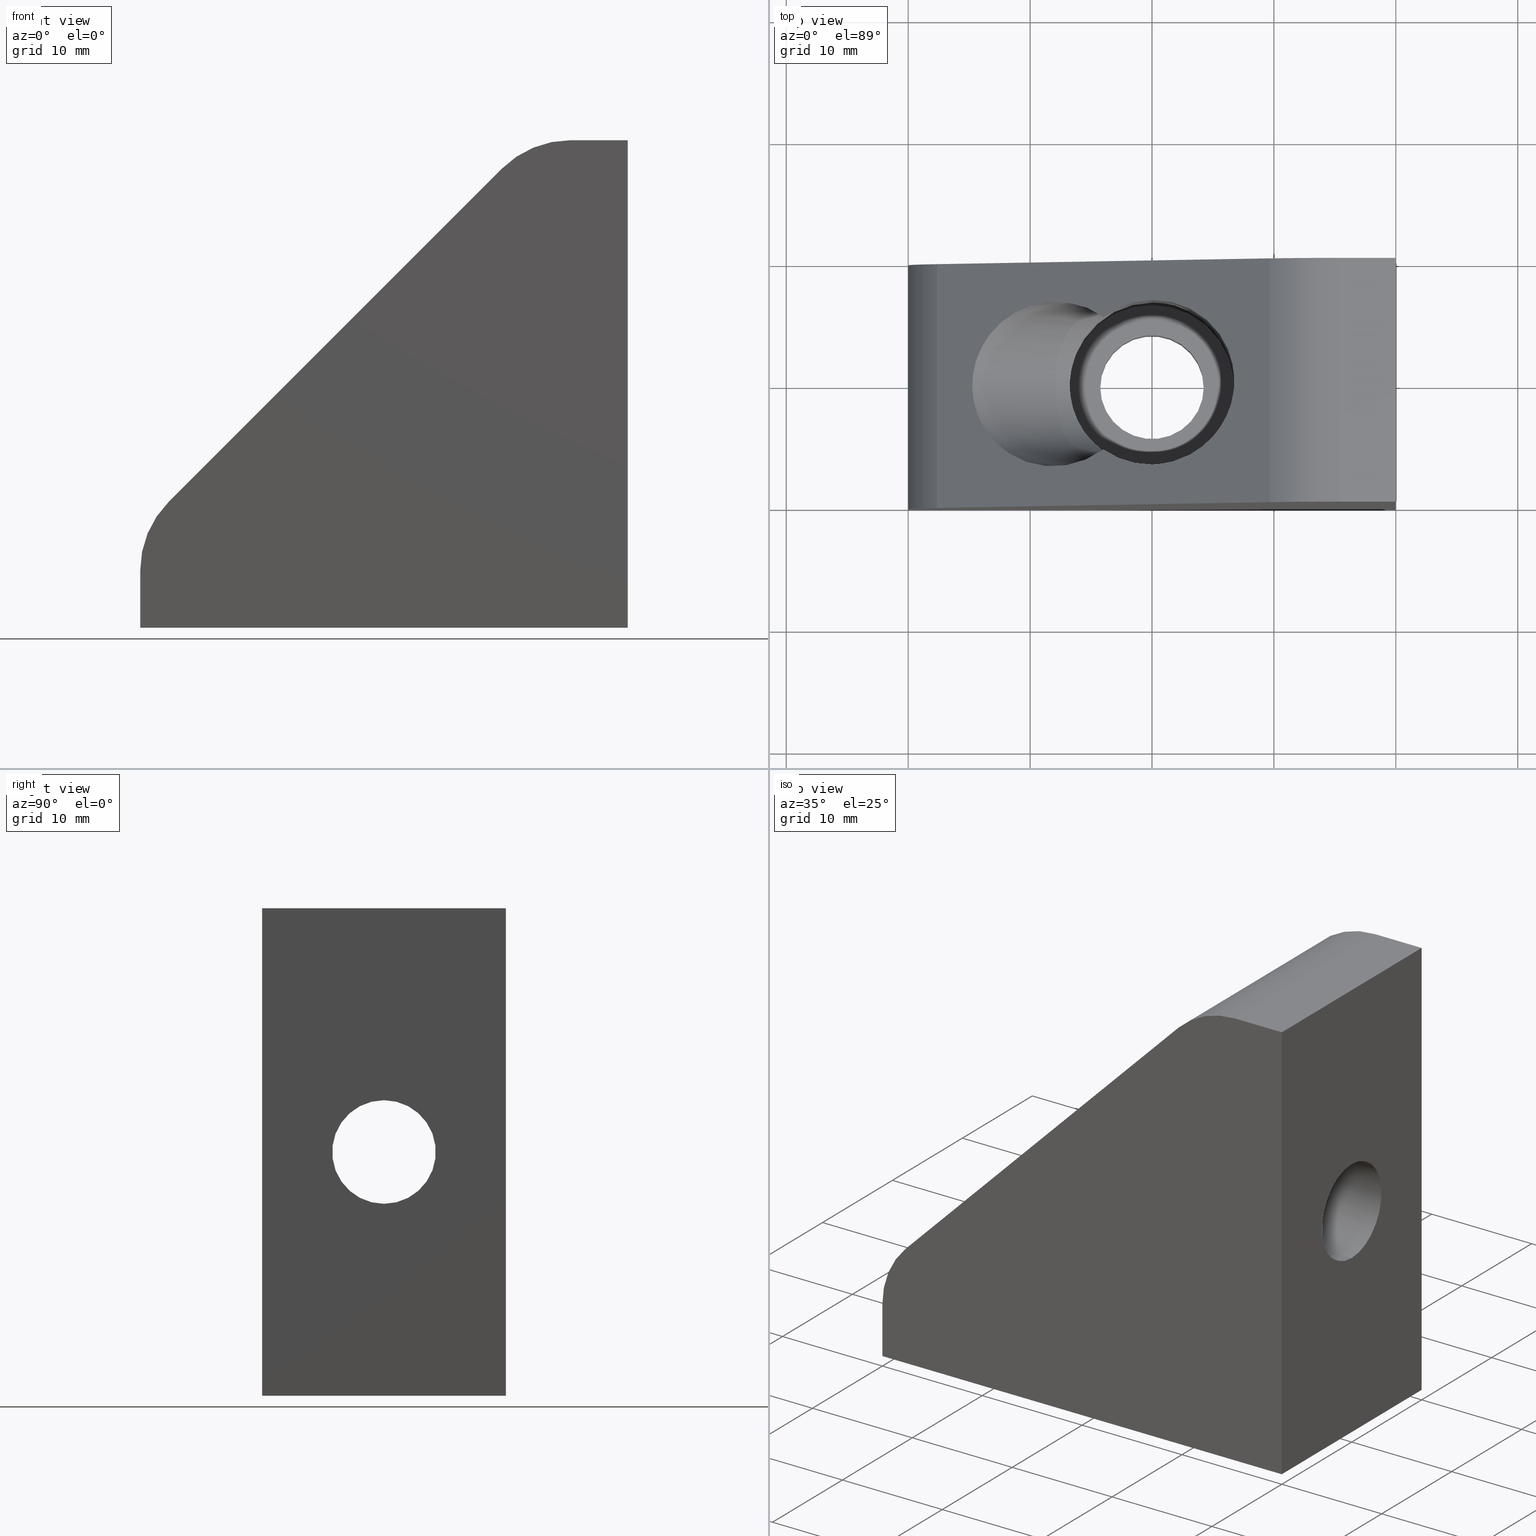
[diagram: canonical four-view strip — front | top / right | iso, engineering-drawing reading convention]
A machine part, canonical four-view strip (front | top / right | iso — engineering-drawing reading convention). The complete STEP part file that produces these views, byte-faithful:
ISO-10303-21;
HEADER;
/****************************************************************
 * Generated by software with PDE/Lib inside                    *
 * PDElib Version v4.4, created Mon 02/23/2004                  *
 * International Technegroup Inc. (www.iti-oh.com)              *
 ****************************************************************/
FILE_DESCRIPTION(('STEP AP203'),'2;1');
FILE_NAME('30.002.00.stp','2011-02-14T10:53:44',(''),(''),'2009.3.110','THINKDESIGN','');
FILE_SCHEMA(('CONFIG_CONTROL_DESIGN'));
ENDSEC;
DATA;
#2=CARTESIAN_POINT('',(-20.000000009999994,-1.065814E-014,20.0));
#3=DIRECTION('',(1.0,0.0,0.0));
#4=DIRECTION('',(0.0,-1.0,0.0));
#5=AXIS2_PLACEMENT_3D('',#2,#3,#4);
#6=CYLINDRICAL_SURFACE('',#5,6.749999999999997);
#7=CARTESIAN_POINT('',(-13.250000000000004,-1.065814E-014,13.250000000000005));
#8=VERTEX_POINT('',#7);
#9=CARTESIAN_POINT('',(-19.999999999999996,6.749999999999993,20.0));
#10=VERTEX_POINT('',#9);
#11=CARTESIAN_POINT('',(-13.250000000000004,-1.065814E-014,13.250000000000005));
#12=CARTESIAN_POINT('',(-13.250000000000004,3.954058453981602,13.250000000000000));
#13=CARTESIAN_POINT('',(-16.045941546018373,6.749999999999989,16.045941546018394));
#14=CARTESIAN_POINT('',(-19.999999999999996,6.749999999999993,20.0));
#22=(BOUNDED_CURVE()B_SPLINE_CURVE(3,(#11,#12,#13,#14),.UNSPECIFIED.,.F.,.U.)B_SPLINE_CURVE_WITH_KNOTS((4,4),(0.0,1.570796326794897),.UNSPECIFIED.)CURVE()GEOMETRIC_REPRESENTATION_ITEM()RATIONAL_B_SPLINE_CURVE((1.0,0.804737854124365,0.804737854124365,1.0))REPRESENTATION_ITEM(''));
#23=EDGE_CURVE('',#8,#10,#22,.T.);
#24=ORIENTED_EDGE('',*,*,#23,.F.);
#25=CARTESIAN_POINT('',(-5.0,-1.065814E-014,13.250000000000000));
#26=VERTEX_POINT('',#25);
#27=CARTESIAN_POINT('',(-13.250000000000004,-1.065814E-014,13.250000000000005));
#28=DIRECTION('',(1.0,0.0,0.0));
#29=VECTOR('',#28,8.250000000000004);
#30=LINE('',#27,#29);
#31=EDGE_CURVE('',#8,#26,#30,.T.);
#32=ORIENTED_EDGE('',*,*,#31,.T.);
#33=CARTESIAN_POINT('',(-5.0,-1.065814E-014,26.750000000000000));
#34=VERTEX_POINT('',#33);
#35=CARTESIAN_POINT('',(-5.0,-1.065814E-014,20.0));
#36=DIRECTION('',(-1.0,0.0,0.0));
#37=DIRECTION('',(0.0,0.0,1.0));
#38=AXIS2_PLACEMENT_3D('',#35,#36,#37);
#39=CIRCLE('',#38,6.749999999999997);
#40=EDGE_CURVE('',#34,#26,#39,.T.);
#41=ORIENTED_EDGE('',*,*,#40,.F.);
#42=CARTESIAN_POINT('',(-13.250000000000004,-1.065814E-014,26.750000000000000));
#43=VERTEX_POINT('',#42);
#44=CARTESIAN_POINT('',(-13.250000000000004,-1.065814E-014,26.750000000000000));
#45=DIRECTION('',(1.0,0.0,0.0));
#46=VECTOR('',#45,8.250000000000004);
#47=LINE('',#44,#46);
#48=EDGE_CURVE('',#43,#34,#47,.T.);
#49=ORIENTED_EDGE('',*,*,#48,.F.);
#50=CARTESIAN_POINT('',(-19.999999999999996,6.749999999999993,20.0));
#51=CARTESIAN_POINT('',(-16.045941546018373,6.749999999999989,23.954058453981599));
#52=CARTESIAN_POINT('',(-13.250000000000004,3.954058453981602,26.750000000000000));
#53=CARTESIAN_POINT('',(-13.250000000000004,-1.065814E-014,26.750000000000000));
#61=(BOUNDED_CURVE()B_SPLINE_CURVE(3,(#50,#51,#52,#53),.UNSPECIFIED.,.F.,.U.)B_SPLINE_CURVE_WITH_KNOTS((4,4),(1.570796326794897,3.141592653589793),.UNSPECIFIED.)CURVE()GEOMETRIC_REPRESENTATION_ITEM()RATIONAL_B_SPLINE_CURVE((1.0,0.804737854124365,0.804737854124365,1.0))REPRESENTATION_ITEM(''));
#62=EDGE_CURVE('',#10,#43,#61,.T.);
#63=ORIENTED_EDGE('',*,*,#62,.F.);
#64=EDGE_LOOP('',(#24,#32,#41,#49,#63));
#65=FACE_OUTER_BOUND('',#64,.T.);
#66=ADVANCED_FACE('',(#65),#6,.F.);
#67=CARTESIAN_POINT('',(0.000000010000001,-1.065814E-014,20.0));
#68=DIRECTION('',(-1.0,0.0,0.0));
#69=DIRECTION('',(0.0,1.0,0.0));
#70=AXIS2_PLACEMENT_3D('',#67,#68,#69);
#71=CYLINDRICAL_SURFACE('',#70,4.250000000000000);
#72=CARTESIAN_POINT('',(0.0,-1.065814E-014,15.749999999999995));
#73=VERTEX_POINT('',#72);
#74=CARTESIAN_POINT('',(0.0,-1.065814E-014,24.250000000000000));
#75=VERTEX_POINT('',#74);
#76=CARTESIAN_POINT('',(0.0,-1.065814E-014,20.0));
#77=DIRECTION('',(-1.0,0.0,0.0));
#78=DIRECTION('',(0.0,0.0,1.0));
#79=AXIS2_PLACEMENT_3D('',#76,#77,#78);
#80=CIRCLE('',#79,4.250000000000000);
#81=EDGE_CURVE('',#73,#75,#80,.T.);
#82=ORIENTED_EDGE('',*,*,#81,.F.);
#83=CARTESIAN_POINT('',(-5.0,-1.065814E-014,15.749999999999995));
#84=VERTEX_POINT('',#83);
#85=CARTESIAN_POINT('',(0.0,-1.065814E-014,15.749999999999995));
#86=DIRECTION('',(-1.0,0.0,0.0));
#87=VECTOR('',#86,5.0);
#88=LINE('',#85,#87);
#89=EDGE_CURVE('',#73,#84,#88,.T.);
#90=ORIENTED_EDGE('',*,*,#89,.T.);
#91=CARTESIAN_POINT('',(-5.0,-1.065814E-014,24.250000000000000));
#92=VERTEX_POINT('',#91);
#93=CARTESIAN_POINT('',(-5.0,-1.065814E-014,20.0));
#94=DIRECTION('',(-1.0,0.0,0.0));
#95=DIRECTION('',(0.0,0.0,-1.0));
#96=AXIS2_PLACEMENT_3D('',#93,#94,#95);
#97=CIRCLE('',#96,4.250000000000000);
#98=EDGE_CURVE('',#84,#92,#97,.T.);
#99=ORIENTED_EDGE('',*,*,#98,.T.);
#100=CARTESIAN_POINT('',(0.0,-1.065814E-014,24.250000000000000));
#101=DIRECTION('',(-1.0,0.0,0.0));
#102=VECTOR('',#101,5.0);
#103=LINE('',#100,#102);
#104=EDGE_CURVE('',#75,#92,#103,.T.);
#105=ORIENTED_EDGE('',*,*,#104,.F.);
#106=EDGE_LOOP('',(#82,#90,#99,#105));
#107=FACE_OUTER_BOUND('',#106,.T.);
#108=ADVANCED_FACE('',(#107),#71,.F.);
#109=CARTESIAN_POINT('',(-20.000000000000004,0.0,-0.000000010000001));
#110=DIRECTION('',(0.0,0.0,1.0));
#111=DIRECTION('',(0.0,1.0,0.0));
#112=AXIS2_PLACEMENT_3D('',#109,#110,#111);
#113=CYLINDRICAL_SURFACE('',#112,4.250000000000004);
#114=CARTESIAN_POINT('',(-24.249999999999996,0.0,0.0));
#115=VERTEX_POINT('',#114);
#116=CARTESIAN_POINT('',(-15.749999999999996,0.0,0.0));
#117=VERTEX_POINT('',#116);
#118=CARTESIAN_POINT('',(-19.999999999999996,0.0,0.0));
#119=DIRECTION('',(0.0,0.0,1.0));
#120=DIRECTION('',(1.0,0.0,0.0));
#121=AXIS2_PLACEMENT_3D('',#118,#119,#120);
#122=CIRCLE('',#121,4.250000000000004);
#123=EDGE_CURVE('',#115,#117,#122,.T.);
#124=ORIENTED_EDGE('',*,*,#123,.F.);
#125=CARTESIAN_POINT('',(-24.249999999999996,0.0,4.999999999999997));
#126=VERTEX_POINT('',#125);
#127=CARTESIAN_POINT('',(-24.249999999999996,0.0,0.0));
#128=DIRECTION('',(0.0,0.0,1.0));
#129=VECTOR('',#128,4.999999999999997);
#130=LINE('',#127,#129);
#131=EDGE_CURVE('',#115,#126,#130,.T.);
#132=ORIENTED_EDGE('',*,*,#131,.T.);
#133=CARTESIAN_POINT('',(-15.749999999999996,0.0,4.999999999999997));
#134=VERTEX_POINT('',#133);
#135=CARTESIAN_POINT('',(-19.999999999999996,0.0,4.999999999999997));
#136=DIRECTION('',(0.0,0.0,1.0));
#137=DIRECTION('',(-1.0,0.0,0.0));
#138=AXIS2_PLACEMENT_3D('',#135,#136,#137);
#139=CIRCLE('',#138,4.250000000000004);
#140=EDGE_CURVE('',#126,#134,#139,.T.);
#141=ORIENTED_EDGE('',*,*,#140,.T.);
#142=CARTESIAN_POINT('',(-15.749999999999996,0.0,0.0));
#143=DIRECTION('',(0.0,0.0,1.0));
#144=VECTOR('',#143,4.999999999999997);
#145=LINE('',#142,#144);
#146=EDGE_CURVE('',#117,#134,#145,.T.);
#147=ORIENTED_EDGE('',*,*,#146,.F.);
#148=EDGE_LOOP('',(#124,#132,#141,#147));
#149=FACE_OUTER_BOUND('',#148,.T.);
#150=ADVANCED_FACE('',(#149),#113,.F.);
#151=CARTESIAN_POINT('',(-19.999999999999996,-3.552714E-015,20.000000010000001));
#152=DIRECTION('',(0.0,0.0,-1.0));
#153=DIRECTION('',(-1.0,0.0,0.0));
#154=AXIS2_PLACEMENT_3D('',#151,#152,#153);
#155=CYLINDRICAL_SURFACE('',#154,6.749999999999997);
#156=CARTESIAN_POINT('',(-19.999999999999996,-6.750000000000014,20.0));
#157=VERTEX_POINT('',#156);
#158=CARTESIAN_POINT('',(-19.999999999999996,-6.750000000000014,20.0));
#159=CARTESIAN_POINT('',(-16.045941546018373,-6.750000000000014,16.045941546018394));
#160=CARTESIAN_POINT('',(-13.250000000000004,-3.954058453981610,13.250000000000000));
#161=CARTESIAN_POINT('',(-13.250000000000004,-1.065814E-014,13.250000000000005));
#169=(BOUNDED_CURVE()B_SPLINE_CURVE(3,(#158,#159,#160,#161),.UNSPECIFIED.,.F.,.U.)B_SPLINE_CURVE_WITH_KNOTS((4,4),(4.712388980384691,6.283185307179585),.UNSPECIFIED.)CURVE()GEOMETRIC_REPRESENTATION_ITEM()RATIONAL_B_SPLINE_CURVE((1.0,0.804737854124365,0.804737854124365,1.0))REPRESENTATION_ITEM(''));
#170=EDGE_CURVE('',#157,#8,#169,.T.);
#171=ORIENTED_EDGE('',*,*,#170,.T.);
#172=ORIENTED_EDGE('',*,*,#23,.T.);
#173=CARTESIAN_POINT('',(-19.999999999999996,6.750000000000000,4.999999999999997));
#174=VERTEX_POINT('',#173);
#175=CARTESIAN_POINT('',(-19.999999999999996,6.749999999999998,20.0));
#176=DIRECTION('',(0.0,0.0,-1.0));
#177=VECTOR('',#176,15.000000000000004);
#178=LINE('',#175,#177);
#179=EDGE_CURVE('',#10,#174,#178,.T.);
#180=ORIENTED_EDGE('',*,*,#179,.T.);
#181=CARTESIAN_POINT('',(-19.999999999999996,-6.750000000000000,4.999999999999997));
#182=VERTEX_POINT('',#181);
#183=CARTESIAN_POINT('',(-19.999999999999996,0.0,4.999999999999997));
#184=DIRECTION('',(0.0,0.0,1.0));
#185=DIRECTION('',(0.0,-1.0,0.0));
#186=AXIS2_PLACEMENT_3D('',#183,#184,#185);
#187=CIRCLE('',#186,6.749999999999997);
#188=EDGE_CURVE('',#182,#174,#187,.T.);
#189=ORIENTED_EDGE('',*,*,#188,.F.);
#190=CARTESIAN_POINT('',(-19.999999999999996,-6.750000000000000,20.0));
#191=DIRECTION('',(0.0,0.0,-1.0));
#192=VECTOR('',#191,15.000000000000004);
#193=LINE('',#190,#192);
#194=EDGE_CURVE('',#157,#182,#193,.T.);
#195=ORIENTED_EDGE('',*,*,#194,.F.);
#196=EDGE_LOOP('',(#171,#172,#180,#189,#195));
#197=FACE_OUTER_BOUND('',#196,.T.);
#198=ADVANCED_FACE('',(#197),#155,.F.);
#199=CARTESIAN_POINT('',(-19.999999999999996,-3.552714E-015,34.750008955876332));
#200=DIRECTION('',(0.0,0.0,-1.0));
#201=DIRECTION('',(-1.0,0.0,0.0));
#202=AXIS2_PLACEMENT_3D('',#199,#200,#201);
#203=CYLINDRICAL_SURFACE('',#202,6.749999999999997);
#204=CARTESIAN_POINT('',(-19.999999999999996,6.749999999999998,28.0));
#205=VERTEX_POINT('',#204);
#206=CARTESIAN_POINT('',(-19.999999999999996,-6.750000000000000,28.0));
#207=VERTEX_POINT('',#206);
#208=CARTESIAN_POINT('',(-19.999999999999996,6.749999999999998,28.0));
#209=CARTESIAN_POINT('',(-6.500000000000004,6.749999999999996,41.499999999999986));
#210=CARTESIAN_POINT('',(-6.500000000000004,-6.749999999999996,41.499999999999986));
#211=CARTESIAN_POINT('',(-19.999999999999996,-6.750000000000000,28.0));
#219=(BOUNDED_CURVE()B_SPLINE_CURVE(3,(#208,#209,#210,#211),.UNSPECIFIED.,.F.,.U.)B_SPLINE_CURVE_WITH_KNOTS((4,4),(1.570796326794897,4.712388980384691),.UNSPECIFIED.)CURVE()GEOMETRIC_REPRESENTATION_ITEM()RATIONAL_B_SPLINE_CURVE((1.0,0.333333333333333,0.333333333333333,1.0))REPRESENTATION_ITEM(''));
#220=EDGE_CURVE('',#205,#207,#219,.T.);
#221=ORIENTED_EDGE('',*,*,#220,.F.);
#222=CARTESIAN_POINT('',(-19.999999999999996,6.749999999999998,28.0));
#223=DIRECTION('',(0.0,0.0,-1.0));
#224=VECTOR('',#223,8.0);
#225=LINE('',#222,#224);
#226=EDGE_CURVE('',#205,#10,#225,.T.);
#227=ORIENTED_EDGE('',*,*,#226,.T.);
#228=ORIENTED_EDGE('',*,*,#62,.T.);
#229=CARTESIAN_POINT('',(-13.250000000000004,-1.065814E-014,26.750000000000000));
#230=CARTESIAN_POINT('',(-13.250000000000004,-3.954058453981610,26.750000000000000));
#231=CARTESIAN_POINT('',(-16.045941546018373,-6.750000000000014,23.954058453981599));
#232=CARTESIAN_POINT('',(-19.999999999999996,-6.750000000000014,20.0));
#240=(BOUNDED_CURVE()B_SPLINE_CURVE(3,(#229,#230,#231,#232),.UNSPECIFIED.,.F.,.U.)B_SPLINE_CURVE_WITH_KNOTS((4,4),(3.141592653589793,4.712388980384691),.UNSPECIFIED.)CURVE()GEOMETRIC_REPRESENTATION_ITEM()RATIONAL_B_SPLINE_CURVE((1.0,0.804737854124365,0.804737854124365,1.0))REPRESENTATION_ITEM(''));
#241=EDGE_CURVE('',#43,#157,#240,.T.);
#242=ORIENTED_EDGE('',*,*,#241,.T.);
#243=CARTESIAN_POINT('',(-19.999999999999996,-6.750000000000000,28.0));
#244=DIRECTION('',(0.0,0.0,-1.0));
#245=VECTOR('',#244,8.0);
#246=LINE('',#243,#245);
#247=EDGE_CURVE('',#207,#157,#246,.T.);
#248=ORIENTED_EDGE('',*,*,#247,.F.);
#249=EDGE_LOOP('',(#221,#227,#228,#242,#248));
#250=FACE_OUTER_BOUND('',#249,.T.);
#251=ADVANCED_FACE('',(#250),#203,.F.);
#252=CARTESIAN_POINT('',(-19.999999999999996,0.0,28.000000010000001));
#253=DIRECTION('',(0.0,0.0,-1.0));
#254=DIRECTION('',(0.311847446947918,0.950132185452143,0.0));
#255=AXIS2_PLACEMENT_3D('',#252,#253,#254);
#256=CYLINDRICAL_SURFACE('',#255,6.749999999999997);
#257=CARTESIAN_POINT('',(-23.999999999999996,-5.437140792732894,24.0));
#258=VERTEX_POINT('',#257);
#259=CARTESIAN_POINT('',(-19.999999999999996,-6.750000000000000,28.0));
#260=CARTESIAN_POINT('',(-21.451571303647828,-6.749999999999994,26.548428696352165));
#261=CARTESIAN_POINT('',(-22.830755918722353,-6.297331194894571,25.169244081277640));
#262=CARTESIAN_POINT('',(-23.999999999999996,-5.437140792732894,24.0));
#270=(BOUNDED_CURVE()B_SPLINE_CURVE(3,(#259,#260,#261,#262),.UNSPECIFIED.,.F.,.U.)B_SPLINE_CURVE_WITH_KNOTS((4,4),(4.712388980384691,5.346662628507185),.UNSPECIFIED.)CURVE()GEOMETRIC_REPRESENTATION_ITEM()RATIONAL_B_SPLINE_CURVE((1.0,0.966754790301429,0.966754790301429,1.0))REPRESENTATION_ITEM(''));
#271=EDGE_CURVE('',#207,#258,#270,.T.);
#272=ORIENTED_EDGE('',*,*,#271,.F.);
#273=ORIENTED_EDGE('',*,*,#247,.T.);
#274=CARTESIAN_POINT('',(-19.999999999999996,-6.750000000000014,20.0));
#275=CARTESIAN_POINT('',(-21.451571303647828,-6.750000000000014,21.451571303647832));
#276=CARTESIAN_POINT('',(-22.830755918722364,-6.297331194894571,22.830755918722360));
#277=CARTESIAN_POINT('',(-23.999999999999996,-5.437140792732894,24.0));
#285=(BOUNDED_CURVE()B_SPLINE_CURVE(3,(#274,#275,#276,#277),.UNSPECIFIED.,.F.,.U.)B_SPLINE_CURVE_WITH_KNOTS((4,4),(1.570796326794897,2.205069974917393),.UNSPECIFIED.)CURVE()GEOMETRIC_REPRESENTATION_ITEM()RATIONAL_B_SPLINE_CURVE((1.0,0.966754790301428,0.966754790301428,1.0))REPRESENTATION_ITEM(''));
#286=EDGE_CURVE('',#157,#258,#285,.T.);
#287=ORIENTED_EDGE('',*,*,#286,.T.);
#288=EDGE_LOOP('',(#272,#273,#287));
#289=FACE_OUTER_BOUND('',#288,.T.);
#290=ADVANCED_FACE('',(#289),#256,.F.);
#291=CARTESIAN_POINT('',(-40.000000000000014,-10.999999999999996,4.920606076066001));
#292=DIRECTION('',(1.0,0.0,0.0));
#293=DIRECTION('',(0.0,0.0,-1.0));
#294=AXIS2_PLACEMENT_3D('',#291,#292,#293);
#295=PLANE('',#294);
#296=CARTESIAN_POINT('',(-40.000000000000014,-10.0,4.686291501015233));
#297=VERTEX_POINT('',#296);
#298=CARTESIAN_POINT('',(-40.000000000000014,-10.0,0.0));
#299=VERTEX_POINT('',#298);
#300=CARTESIAN_POINT('',(-40.000000000000014,-10.0,4.686291501015241));
#301=DIRECTION('',(0.0,0.0,-1.0));
#302=VECTOR('',#301,4.686291501015241);
#303=LINE('',#300,#302);
#304=EDGE_CURVE('',#297,#299,#303,.T.);
#305=ORIENTED_EDGE('',*,*,#304,.F.);
#306=CARTESIAN_POINT('',(-40.000000000000014,10.000000000000002,4.686291501015233));
#307=VERTEX_POINT('',#306);
#308=CARTESIAN_POINT('',(-40.000000000000014,-9.999999999999996,4.686291501015233));
#309=DIRECTION('',(0.0,1.0,0.0));
#310=VECTOR('',#309,20.0);
#311=LINE('',#308,#310);
#312=EDGE_CURVE('',#297,#307,#311,.T.);
#313=ORIENTED_EDGE('',*,*,#312,.T.);
#314=CARTESIAN_POINT('',(-40.000000000000014,10.000000000000002,0.0));
#315=VERTEX_POINT('',#314);
#316=CARTESIAN_POINT('',(-40.000000000000014,10.000000000000002,4.686291501015241));
#317=DIRECTION('',(0.0,0.0,-1.0));
#318=VECTOR('',#317,4.686291501015241);
#319=LINE('',#316,#318);
#320=EDGE_CURVE('',#307,#315,#319,.T.);
#321=ORIENTED_EDGE('',*,*,#320,.T.);
#322=CARTESIAN_POINT('',(-40.000000000000014,10.000000000000002,0.0));
#323=DIRECTION('',(0.0,-1.0,0.0));
#324=VECTOR('',#323,20.0);
#325=LINE('',#322,#324);
#326=EDGE_CURVE('',#315,#299,#325,.T.);
#327=ORIENTED_EDGE('',*,*,#326,.T.);
#328=EDGE_LOOP('',(#305,#313,#321,#327));
#329=FACE_OUTER_BOUND('',#328,.T.);
#330=ADVANCED_FACE('',(#329),#295,.F.);
#331=CARTESIAN_POINT('',(-42.000000000000014,-10.0,-2.0));
#332=DIRECTION('',(0.0,1.0,0.0));
#333=DIRECTION('',(0.0,0.0,1.0));
#334=AXIS2_PLACEMENT_3D('',#331,#332,#333);
#335=PLANE('',#334);
#336=CARTESIAN_POINT('',(-4.686291501015241,-10.0,40.0));
#337=VERTEX_POINT('',#336);
#338=CARTESIAN_POINT('',(0.0,-10.0,40.0));
#339=VERTEX_POINT('',#338);
#340=CARTESIAN_POINT('',(-4.686291501015244,-10.0,40.0));
#341=DIRECTION('',(1.0,0.0,0.0));
#342=VECTOR('',#341,4.686291501015244);
#343=LINE('',#340,#342);
#344=EDGE_CURVE('',#337,#339,#343,.T.);
#345=ORIENTED_EDGE('',*,*,#344,.F.);
#346=CARTESIAN_POINT('',(-10.343145750507620,-10.0,37.656854249492390));
#347=VERTEX_POINT('',#346);
#348=CARTESIAN_POINT('',(-4.686291501015241,-10.0,32.0));
#349=DIRECTION('',(0.0,-1.0,0.0));
#350=DIRECTION('',(0.0,0.0,1.0));
#351=AXIS2_PLACEMENT_3D('',#348,#349,#350);
#352=CIRCLE('',#351,8.0);
#353=EDGE_CURVE('',#337,#347,#352,.T.);
#354=ORIENTED_EDGE('',*,*,#353,.T.);
#355=CARTESIAN_POINT('',(-37.656854249492369,-10.0,10.343145750507613));
#356=VERTEX_POINT('',#355);
#357=CARTESIAN_POINT('',(-37.656854249492383,-10.0,10.343145750507619));
#358=DIRECTION('',(0.707106781186547,0.0,0.707106781186548));
#359=VECTOR('',#358,38.627416997969533);
#360=LINE('',#357,#359);
#361=EDGE_CURVE('',#356,#347,#360,.T.);
#362=ORIENTED_EDGE('',*,*,#361,.F.);
#363=CARTESIAN_POINT('',(-32.0,-10.0,4.686291501015233));
#364=DIRECTION('',(0.0,-1.0,0.0));
#365=DIRECTION('',(0.0,0.0,1.0));
#366=AXIS2_PLACEMENT_3D('',#363,#364,#365);
#367=CIRCLE('',#366,8.0);
#368=EDGE_CURVE('',#356,#297,#367,.T.);
#369=ORIENTED_EDGE('',*,*,#368,.T.);
#370=ORIENTED_EDGE('',*,*,#304,.T.);
#371=CARTESIAN_POINT('',(0.0,-10.0,0.0));
#372=VERTEX_POINT('',#371);
#373=CARTESIAN_POINT('',(-40.000000000000014,-10.0,0.0));
#374=DIRECTION('',(1.0,0.0,0.0));
#375=VECTOR('',#374,40.000000000000014);
#376=LINE('',#373,#375);
#377=EDGE_CURVE('',#299,#372,#376,.T.);
#378=ORIENTED_EDGE('',*,*,#377,.T.);
#379=CARTESIAN_POINT('',(0.0,-10.0,40.0));
#380=DIRECTION('',(0.0,0.0,-1.0));
#381=VECTOR('',#380,40.0);
#382=LINE('',#379,#381);
#383=EDGE_CURVE('',#339,#372,#382,.T.);
#384=ORIENTED_EDGE('',*,*,#383,.F.);
#385=EDGE_LOOP('',(#345,#354,#362,#369,#370,#378,#384));
#386=FACE_OUTER_BOUND('',#385,.T.);
#387=ADVANCED_FACE('',(#386),#335,.F.);
#388=CARTESIAN_POINT('',(-42.000000000000014,10.000000000000002,42.0));
#389=DIRECTION('',(0.0,-1.0,0.0));
#390=DIRECTION('',(0.0,0.0,-1.0));
#391=AXIS2_PLACEMENT_3D('',#388,#389,#390);
#392=PLANE('',#391);
#393=CARTESIAN_POINT('',(-37.656854249492369,9.999999999999998,10.343145750507611));
#394=VERTEX_POINT('',#393);
#395=CARTESIAN_POINT('',(-10.343145750507620,9.999999999999998,37.656854249492390));
#396=VERTEX_POINT('',#395);
#397=CARTESIAN_POINT('',(-37.656854249492369,9.999999999999998,10.343145750507617));
#398=DIRECTION('',(0.707106781186548,0.0,0.707106781186548));
#399=VECTOR('',#398,38.627416997969526);
#400=LINE('',#397,#399);
#401=EDGE_CURVE('',#394,#396,#400,.T.);
#402=ORIENTED_EDGE('',*,*,#401,.T.);
#403=CARTESIAN_POINT('',(-4.686291501015241,10.000000000000002,40.0));
#404=VERTEX_POINT('',#403);
#405=CARTESIAN_POINT('',(-4.686291501015241,9.999999999999996,32.0));
#406=DIRECTION('',(0.0,1.0,0.0));
#407=DIRECTION('',(0.0,0.0,-1.0));
#408=AXIS2_PLACEMENT_3D('',#405,#406,#407);
#409=CIRCLE('',#408,8.0);
#410=EDGE_CURVE('',#396,#404,#409,.T.);
#411=ORIENTED_EDGE('',*,*,#410,.T.);
#412=CARTESIAN_POINT('',(0.0,10.000000000000002,40.0));
#413=VERTEX_POINT('',#412);
#414=CARTESIAN_POINT('',(0.0,10.000000000000002,40.0));
#415=DIRECTION('',(-1.0,0.0,0.0));
#416=VECTOR('',#415,4.686291501015241);
#417=LINE('',#414,#416);
#418=EDGE_CURVE('',#413,#404,#417,.T.);
#419=ORIENTED_EDGE('',*,*,#418,.F.);
#420=CARTESIAN_POINT('',(0.0,10.000000000000002,0.0));
#421=VERTEX_POINT('',#420);
#422=CARTESIAN_POINT('',(0.0,10.000000000000002,40.0));
#423=DIRECTION('',(0.0,0.0,-1.0));
#424=VECTOR('',#423,40.0);
#425=LINE('',#422,#424);
#426=EDGE_CURVE('',#413,#421,#425,.T.);
#427=ORIENTED_EDGE('',*,*,#426,.T.);
#428=CARTESIAN_POINT('',(0.0,10.000000000000002,0.0));
#429=DIRECTION('',(-1.0,0.0,0.0));
#430=VECTOR('',#429,40.000000000000014);
#431=LINE('',#428,#430);
#432=EDGE_CURVE('',#421,#315,#431,.T.);
#433=ORIENTED_EDGE('',*,*,#432,.T.);
#434=ORIENTED_EDGE('',*,*,#320,.F.);
#435=CARTESIAN_POINT('',(-32.0,10.000000000000002,4.686291501015233));
#436=DIRECTION('',(0.0,1.0,0.0));
#437=DIRECTION('',(0.0,0.0,-1.0));
#438=AXIS2_PLACEMENT_3D('',#435,#436,#437);
#439=CIRCLE('',#438,8.0);
#440=EDGE_CURVE('',#307,#394,#439,.T.);
#441=ORIENTED_EDGE('',*,*,#440,.T.);
#442=EDGE_LOOP('',(#402,#411,#419,#427,#433,#434,#441));
#443=FACE_OUTER_BOUND('',#442,.T.);
#444=ADVANCED_FACE('',(#443),#392,.F.);
#445=CARTESIAN_POINT('',(-4.920606076066004,-11.000000000000004,40.0));
#446=DIRECTION('',(0.0,0.0,1.0));
#447=DIRECTION('',(1.0,0.0,0.0));
#448=AXIS2_PLACEMENT_3D('',#445,#446,#447);
#449=PLANE('',#448);
#450=ORIENTED_EDGE('',*,*,#418,.T.);
#451=CARTESIAN_POINT('',(-4.686291501015241,10.000000000000004,40.0));
#452=DIRECTION('',(0.0,-1.0,0.0));
#453=VECTOR('',#452,20.000000000000007);
#454=LINE('',#451,#453);
#455=EDGE_CURVE('',#404,#337,#454,.T.);
#456=ORIENTED_EDGE('',*,*,#455,.T.);
#457=ORIENTED_EDGE('',*,*,#344,.T.);
#458=CARTESIAN_POINT('',(0.0,-10.0,40.0));
#459=DIRECTION('',(0.0,1.0,0.0));
#460=VECTOR('',#459,20.0);
#461=LINE('',#458,#460);
#462=EDGE_CURVE('',#339,#413,#461,.T.);
#463=ORIENTED_EDGE('',*,*,#462,.T.);
#464=EDGE_LOOP('',(#450,#456,#457,#463));
#465=FACE_OUTER_BOUND('',#464,.T.);
#466=ADVANCED_FACE('',(#465),#449,.T.);
#467=CARTESIAN_POINT('',(-19.999999999999996,0.0,28.000000010000001));
#468=DIRECTION('',(0.0,0.0,-1.0));
#469=DIRECTION('',(0.0,-1.0,0.0));
#470=AXIS2_PLACEMENT_3D('',#467,#468,#469);
#471=CYLINDRICAL_SURFACE('',#470,6.749999999999997);
#472=ORIENTED_EDGE('',*,*,#226,.F.);
#473=CARTESIAN_POINT('',(-23.999999999999996,5.437140792732880,24.0));
#474=VERTEX_POINT('',#473);
#475=CARTESIAN_POINT('',(-23.999999999999996,5.437140792732880,24.0));
#476=CARTESIAN_POINT('',(-22.830755918722357,6.297331194894561,25.169244081277633));
#477=CARTESIAN_POINT('',(-21.451571303647828,6.749999999999998,26.548428696352165));
#478=CARTESIAN_POINT('',(-19.999999999999996,6.749999999999998,28.0));
#486=(BOUNDED_CURVE()B_SPLINE_CURVE(3,(#475,#476,#477,#478),.UNSPECIFIED.,.F.,.U.)B_SPLINE_CURVE_WITH_KNOTS((4,4),(0.936522678672400,1.570796326794897),.UNSPECIFIED.)CURVE()GEOMETRIC_REPRESENTATION_ITEM()RATIONAL_B_SPLINE_CURVE((1.0,0.966754790301428,0.966754790301428,1.0))REPRESENTATION_ITEM(''));
#487=EDGE_CURVE('',#474,#205,#486,.T.);
#488=ORIENTED_EDGE('',*,*,#487,.F.);
#489=CARTESIAN_POINT('',(-23.999999999999996,5.437140792732880,24.0));
#490=CARTESIAN_POINT('',(-22.830755918722364,6.297331194894557,22.830755918722367));
#491=CARTESIAN_POINT('',(-21.451571303647828,6.749999999999993,21.451571303647832));
#492=CARTESIAN_POINT('',(-19.999999999999996,6.749999999999993,20.0));
#500=(BOUNDED_CURVE()B_SPLINE_CURVE(3,(#489,#490,#491,#492),.UNSPECIFIED.,.F.,.U.)B_SPLINE_CURVE_WITH_KNOTS((4,4),(4.078115332262193,4.712388980384691),.UNSPECIFIED.)CURVE()GEOMETRIC_REPRESENTATION_ITEM()RATIONAL_B_SPLINE_CURVE((1.0,0.966754790301428,0.966754790301428,1.0))REPRESENTATION_ITEM(''));
#501=EDGE_CURVE('',#474,#10,#500,.T.);
#502=ORIENTED_EDGE('',*,*,#501,.T.);
#503=EDGE_LOOP('',(#472,#488,#502));
#504=FACE_OUTER_BOUND('',#503,.T.);
#505=ADVANCED_FACE('',(#504),#471,.F.);
#506=CARTESIAN_POINT('',(-34.750002994728241,-1.065814E-014,20.0));
#507=DIRECTION('',(1.0,0.0,0.0));
#508=DIRECTION('',(0.0,0.0,1.0));
#509=AXIS2_PLACEMENT_3D('',#506,#507,#508);
#510=CYLINDRICAL_SURFACE('',#509,6.749999999999997);
#511=CARTESIAN_POINT('',(-23.999999999999996,-5.437140792732894,24.0));
#512=CARTESIAN_POINT('',(-29.100047709901933,-9.189147889344042,18.899952290098049));
#513=CARTESIAN_POINT('',(-34.749999999999986,-6.331511975531321,13.249999999999995));
#514=CARTESIAN_POINT('',(-34.749999999999986,0.0,13.250000000000000));
#515=CARTESIAN_POINT('',(-34.750000000000000,6.331511975531316,13.250000000000000));
#516=CARTESIAN_POINT('',(-29.100047709901933,9.189147889344033,18.899952290098049));
#517=CARTESIAN_POINT('',(-23.999999999999996,5.437140792732880,24.0));
#525=(BOUNDED_CURVE()B_SPLINE_CURVE(3,(#511,#512,#513,#514,#515,#516,#517),.UNSPECIFIED.,.F.,.U.)B_SPLINE_CURVE_WITH_KNOTS((4,3,4),(0.936522678672401,3.141592653589793,5.346662628507185),.UNSPECIFIED.)CURVE()GEOMETRIC_REPRESENTATION_ITEM()RATIONAL_B_SPLINE_CURVE((1.0,0.634223644616147,0.634223644616147,1.0,0.634223644616147,0.634223644616147,1.0))REPRESENTATION_ITEM(''));
#526=EDGE_CURVE('',#258,#474,#525,.T.);
#527=ORIENTED_EDGE('',*,*,#526,.F.);
#528=ORIENTED_EDGE('',*,*,#286,.F.);
#529=CARTESIAN_POINT('',(-19.999999999999996,6.749999999999993,20.0));
#530=CARTESIAN_POINT('',(-33.500000000000000,6.749999999999996,6.500000000000004));
#531=CARTESIAN_POINT('',(-33.500000000000000,-6.750000000000018,6.500000000000004));
#532=CARTESIAN_POINT('',(-19.999999999999996,-6.750000000000014,20.0));
#540=(BOUNDED_CURVE()B_SPLINE_CURVE(3,(#529,#530,#531,#532),.UNSPECIFIED.,.F.,.U.)B_SPLINE_CURVE_WITH_KNOTS((4,4),(4.712388980384691,7.853981633974483),.UNSPECIFIED.)CURVE()GEOMETRIC_REPRESENTATION_ITEM()RATIONAL_B_SPLINE_CURVE((1.0,0.333333333333333,0.333333333333333,1.0))REPRESENTATION_ITEM(''));
#541=EDGE_CURVE('',#10,#157,#540,.T.);
#542=ORIENTED_EDGE('',*,*,#541,.F.);
#543=ORIENTED_EDGE('',*,*,#501,.F.);
#544=EDGE_LOOP('',(#527,#528,#542,#543));
#545=FACE_OUTER_BOUND('',#544,.T.);
#546=ADVANCED_FACE('',(#545),#510,.F.);
#547=CARTESIAN_POINT('',(-20.000000000000004,0.0,20.000000010000001));
#548=DIRECTION('',(0.0,0.0,-1.0));
#549=DIRECTION('',(1.0,0.0,0.0));
#550=AXIS2_PLACEMENT_3D('',#547,#548,#549);
#551=CYLINDRICAL_SURFACE('',#550,6.749999999999997);
#552=ORIENTED_EDGE('',*,*,#179,.F.);
#553=ORIENTED_EDGE('',*,*,#541,.T.);
#554=ORIENTED_EDGE('',*,*,#194,.T.);
#555=CARTESIAN_POINT('',(-19.999999999999996,0.0,4.999999999999997));
#556=DIRECTION('',(0.0,0.0,1.0));
#557=DIRECTION('',(0.0,-1.0,0.0));
#558=AXIS2_PLACEMENT_3D('',#555,#556,#557);
#559=CIRCLE('',#558,6.749999999999997);
#560=EDGE_CURVE('',#174,#182,#559,.T.);
#561=ORIENTED_EDGE('',*,*,#560,.F.);
#562=EDGE_LOOP('',(#552,#553,#554,#561));
#563=FACE_OUTER_BOUND('',#562,.T.);
#564=ADVANCED_FACE('',(#563),#551,.F.);
#565=CARTESIAN_POINT('',(0.0,-11.0,-2.0));
#566=DIRECTION('',(-1.0,0.0,0.0));
#567=DIRECTION('',(0.0,0.0,1.0));
#568=AXIS2_PLACEMENT_3D('',#565,#566,#567);
#569=PLANE('',#568);
#570=CARTESIAN_POINT('',(0.0,-10.0,0.0));
#571=DIRECTION('',(0.0,1.0,0.0));
#572=VECTOR('',#571,20.0);
#573=LINE('',#570,#572);
#574=EDGE_CURVE('',#372,#421,#573,.T.);
#575=ORIENTED_EDGE('',*,*,#574,.T.);
#576=ORIENTED_EDGE('',*,*,#426,.F.);
#577=ORIENTED_EDGE('',*,*,#462,.F.);
#578=ORIENTED_EDGE('',*,*,#383,.T.);
#579=EDGE_LOOP('',(#575,#576,#577,#578));
#580=FACE_OUTER_BOUND('',#579,.T.);
#581=CARTESIAN_POINT('',(0.0,-1.065814E-014,20.0));
#582=DIRECTION('',(-1.0,0.0,0.0));
#583=DIRECTION('',(0.0,0.0,1.0));
#584=AXIS2_PLACEMENT_3D('',#581,#582,#583);
#585=CIRCLE('',#584,4.250000000000000);
#586=EDGE_CURVE('',#75,#73,#585,.T.);
#587=ORIENTED_EDGE('',*,*,#586,.T.);
#588=ORIENTED_EDGE('',*,*,#81,.T.);
#589=EDGE_LOOP('',(#587,#588));
#590=FACE_BOUND('',#589,.T.);
#591=ADVANCED_FACE('',(#580,#590),#569,.F.);
#592=CARTESIAN_POINT('',(-42.000000000000014,-11.0,0.0));
#593=DIRECTION('',(0.0,0.0,1.0));
#594=DIRECTION('',(1.0,0.0,0.0));
#595=AXIS2_PLACEMENT_3D('',#592,#593,#594);
#596=PLANE('',#595);
#597=ORIENTED_EDGE('',*,*,#326,.F.);
#598=ORIENTED_EDGE('',*,*,#432,.F.);
#599=ORIENTED_EDGE('',*,*,#574,.F.);
#600=ORIENTED_EDGE('',*,*,#377,.F.);
#601=EDGE_LOOP('',(#597,#598,#599,#600));
#602=FACE_OUTER_BOUND('',#601,.T.);
#603=CARTESIAN_POINT('',(-19.999999999999996,0.0,0.0));
#604=DIRECTION('',(0.0,0.0,1.0));
#605=DIRECTION('',(1.0,0.0,0.0));
#606=AXIS2_PLACEMENT_3D('',#603,#604,#605);
#607=CIRCLE('',#606,4.250000000000004);
#608=EDGE_CURVE('',#117,#115,#607,.T.);
#609=ORIENTED_EDGE('',*,*,#608,.T.);
#610=ORIENTED_EDGE('',*,*,#123,.T.);
#611=EDGE_LOOP('',(#609,#610));
#612=FACE_BOUND('',#611,.T.);
#613=ADVANCED_FACE('',(#602,#612),#596,.F.);
#614=CARTESIAN_POINT('',(-19.999999999999996,-3.552714E-015,-0.000000010000001));
#615=DIRECTION('',(0.0,0.0,1.0));
#616=DIRECTION('',(0.0,-1.0,0.0));
#617=AXIS2_PLACEMENT_3D('',#614,#615,#616);
#618=CYLINDRICAL_SURFACE('',#617,4.250000000000004);
#619=ORIENTED_EDGE('',*,*,#131,.F.);
#620=ORIENTED_EDGE('',*,*,#608,.F.);
#621=ORIENTED_EDGE('',*,*,#146,.T.);
#622=CARTESIAN_POINT('',(-19.999999999999996,0.0,4.999999999999997));
#623=DIRECTION('',(0.0,0.0,1.0));
#624=DIRECTION('',(-1.0,0.0,0.0));
#625=AXIS2_PLACEMENT_3D('',#622,#623,#624);
#626=CIRCLE('',#625,4.250000000000004);
#627=EDGE_CURVE('',#134,#126,#626,.T.);
#628=ORIENTED_EDGE('',*,*,#627,.T.);
#629=EDGE_LOOP('',(#619,#620,#621,#628));
#630=FACE_OUTER_BOUND('',#629,.T.);
#631=ADVANCED_FACE('',(#630),#618,.F.);
#632=CARTESIAN_POINT('',(-12.574999999999999,-7.425000000000001,4.999999999999997));
#633=DIRECTION('',(0.0,0.0,-1.0));
#634=DIRECTION('',(-1.0,0.0,0.0));
#635=AXIS2_PLACEMENT_3D('',#632,#633,#634);
#636=PLANE('',#635);
#637=ORIENTED_EDGE('',*,*,#188,.T.);
#638=ORIENTED_EDGE('',*,*,#560,.T.);
#639=EDGE_LOOP('',(#637,#638));
#640=FACE_OUTER_BOUND('',#639,.T.);
#641=ORIENTED_EDGE('',*,*,#627,.F.);
#642=ORIENTED_EDGE('',*,*,#140,.F.);
#643=EDGE_LOOP('',(#641,#642));
#644=FACE_BOUND('',#643,.T.);
#645=ADVANCED_FACE('',(#640,#644),#636,.F.);
#646=CARTESIAN_POINT('',(0.000000010000001,-1.065814E-014,20.0));
#647=DIRECTION('',(-1.0,0.0,0.0));
#648=DIRECTION('',(0.0,-1.0,0.0));
#649=AXIS2_PLACEMENT_3D('',#646,#647,#648);
#650=CYLINDRICAL_SURFACE('',#649,4.250000000000000);
#651=ORIENTED_EDGE('',*,*,#89,.F.);
#652=ORIENTED_EDGE('',*,*,#586,.F.);
#653=ORIENTED_EDGE('',*,*,#104,.T.);
#654=CARTESIAN_POINT('',(-5.0,-1.065814E-014,20.0));
#655=DIRECTION('',(-1.0,0.0,0.0));
#656=DIRECTION('',(0.0,0.0,-1.0));
#657=AXIS2_PLACEMENT_3D('',#654,#655,#656);
#658=CIRCLE('',#657,4.250000000000000);
#659=EDGE_CURVE('',#92,#84,#658,.T.);
#660=ORIENTED_EDGE('',*,*,#659,.T.);
#661=EDGE_LOOP('',(#651,#652,#653,#660));
#662=FACE_OUTER_BOUND('',#661,.T.);
#663=ADVANCED_FACE('',(#662),#650,.F.);
#664=CARTESIAN_POINT('',(-5.0,-7.425000000000008,27.425000000000001));
#665=DIRECTION('',(1.0,0.0,0.0));
#666=DIRECTION('',(0.0,0.0,-1.0));
#667=AXIS2_PLACEMENT_3D('',#664,#665,#666);
#668=PLANE('',#667);
#669=ORIENTED_EDGE('',*,*,#40,.T.);
#670=CARTESIAN_POINT('',(-5.0,-1.065814E-014,20.0));
#671=DIRECTION('',(-1.0,0.0,0.0));
#672=DIRECTION('',(0.0,0.0,1.0));
#673=AXIS2_PLACEMENT_3D('',#670,#671,#672);
#674=CIRCLE('',#673,6.749999999999997);
#675=EDGE_CURVE('',#26,#34,#674,.T.);
#676=ORIENTED_EDGE('',*,*,#675,.T.);
#677=EDGE_LOOP('',(#669,#676));
#678=FACE_OUTER_BOUND('',#677,.T.);
#679=ORIENTED_EDGE('',*,*,#659,.F.);
#680=ORIENTED_EDGE('',*,*,#98,.F.);
#681=EDGE_LOOP('',(#679,#680));
#682=FACE_BOUND('',#681,.T.);
#683=ADVANCED_FACE('',(#678,#682),#668,.F.);
#684=CARTESIAN_POINT('',(-20.000000009999994,-1.065814E-014,20.0));
#685=DIRECTION('',(1.0,0.0,0.0));
#686=DIRECTION('',(0.0,1.0,0.0));
#687=AXIS2_PLACEMENT_3D('',#684,#685,#686);
#688=CYLINDRICAL_SURFACE('',#687,6.749999999999997);
#689=ORIENTED_EDGE('',*,*,#31,.F.);
#690=ORIENTED_EDGE('',*,*,#170,.F.);
#691=ORIENTED_EDGE('',*,*,#241,.F.);
#692=ORIENTED_EDGE('',*,*,#48,.T.);
#693=ORIENTED_EDGE('',*,*,#675,.F.);
#694=EDGE_LOOP('',(#689,#690,#691,#692,#693));
#695=FACE_OUTER_BOUND('',#694,.T.);
#696=ADVANCED_FACE('',(#695),#688,.F.);
#697=CARTESIAN_POINT('',(-39.022539674441617,-10.999999999999996,8.977460325558372));
#698=DIRECTION('',(-0.707106781186548,0.0,0.707106781186548));
#699=DIRECTION('',(0.707106781186548,0.0,0.707106781186548));
#700=AXIS2_PLACEMENT_3D('',#697,#698,#699);
#701=PLANE('',#700);
#702=ORIENTED_EDGE('',*,*,#361,.T.);
#703=CARTESIAN_POINT('',(-10.343145750507620,-9.999999999999996,37.656854249492390));
#704=DIRECTION('',(0.0,1.0,0.0));
#705=VECTOR('',#704,19.999999999999993);
#706=LINE('',#703,#705);
#707=EDGE_CURVE('',#347,#396,#706,.T.);
#708=ORIENTED_EDGE('',*,*,#707,.T.);
#709=ORIENTED_EDGE('',*,*,#401,.F.);
#710=CARTESIAN_POINT('',(-37.656854249492369,9.999999999999996,10.343145750507613));
#711=DIRECTION('',(0.0,-1.0,0.0));
#712=VECTOR('',#711,19.999999999999996);
#713=LINE('',#710,#712);
#714=EDGE_CURVE('',#394,#356,#713,.T.);
#715=ORIENTED_EDGE('',*,*,#714,.T.);
#716=EDGE_LOOP('',(#702,#708,#709,#715));
#717=FACE_OUTER_BOUND('',#716,.T.);
#718=ORIENTED_EDGE('',*,*,#487,.T.);
#719=ORIENTED_EDGE('',*,*,#220,.T.);
#720=ORIENTED_EDGE('',*,*,#271,.T.);
#721=ORIENTED_EDGE('',*,*,#526,.T.);
#722=EDGE_LOOP('',(#718,#719,#720,#721));
#723=FACE_BOUND('',#722,.T.);
#724=ADVANCED_FACE('',(#717,#723),#701,.T.);
#725=CARTESIAN_POINT('',(-32.0,10.000000010000004,4.686291501015233));
#726=DIRECTION('',(0.0,-1.0,0.0));
#727=DIRECTION('',(0.0,0.0,-1.0));
#728=AXIS2_PLACEMENT_3D('',#725,#726,#727);
#729=CYLINDRICAL_SURFACE('',#728,8.0);
#730=ORIENTED_EDGE('',*,*,#368,.F.);
#731=ORIENTED_EDGE('',*,*,#714,.F.);
#732=ORIENTED_EDGE('',*,*,#440,.F.);
#733=ORIENTED_EDGE('',*,*,#312,.F.);
#734=EDGE_LOOP('',(#730,#731,#732,#733));
#735=FACE_OUTER_BOUND('',#734,.T.);
#736=ADVANCED_FACE('',(#735),#729,.T.);
#737=CARTESIAN_POINT('',(-4.686291501015244,-10.000000010000008,31.999999999999996));
#738=DIRECTION('',(0.0,1.0,0.0));
#739=DIRECTION('',(0.382683432365089,0.0,-0.923879532511287));
#740=AXIS2_PLACEMENT_3D('',#737,#738,#739);
#741=CYLINDRICAL_SURFACE('',#740,8.0);
#742=ORIENTED_EDGE('',*,*,#353,.F.);
#743=ORIENTED_EDGE('',*,*,#455,.F.);
#744=ORIENTED_EDGE('',*,*,#410,.F.);
#745=ORIENTED_EDGE('',*,*,#707,.F.);
#746=EDGE_LOOP('',(#742,#743,#744,#745));
#747=FACE_OUTER_BOUND('',#746,.T.);
#748=ADVANCED_FACE('',(#747),#741,.T.);
#749=CLOSED_SHELL('',(#66,#108,#150,#198,#251,#290,#330,#387,#444,#466,#505,#546,#564,#591,#613,#631,#645,#663,#683,#696,#724,#736,#748));
#750=MANIFOLD_SOLID_BREP('Importato1',#749);
#756=(NAMED_UNIT(*)PLANE_ANGLE_UNIT()SI_UNIT($,.RADIAN.));
#757=DIMENSIONAL_EXPONENTS(0.0,0.0,0.0,0.0,0.0,0.0,0.0);
#758=PLANE_ANGLE_MEASURE_WITH_UNIT(PLANE_ANGLE_MEASURE(0.017453292500000),#756);
#762=(CONVERSION_BASED_UNIT('DEGREE',#758)NAMED_UNIT(#757)PLANE_ANGLE_UNIT());
#766=(NAMED_UNIT(*)SI_UNIT($,.STERADIAN.)SOLID_ANGLE_UNIT());
#770=(LENGTH_UNIT()NAMED_UNIT(*)SI_UNIT(.MILLI.,.METRE.));
#772=UNCERTAINTY_MEASURE_WITH_UNIT(LENGTH_MEASURE(0.001000000000000),#770,'DISTANCE_ACCURACY_VALUE','');
#774=(GEOMETRIC_REPRESENTATION_CONTEXT(3)GLOBAL_UNCERTAINTY_ASSIGNED_CONTEXT((#772))GLOBAL_UNIT_ASSIGNED_CONTEXT((#762,#766,#770))REPRESENTATION_CONTEXT('thinkdesign','2009.3.110'));
#775=ADVANCED_BREP_SHAPE_REPRESENTATION('',(#750),#774);
#776=APPLICATION_CONTEXT('configuration controlled 3D designs of mechanical parts and assemblies');
#777=APPLICATION_PROTOCOL_DEFINITION('International Standard','config_control_design',1995,#776);
#778=MECHANICAL_CONTEXT('None',#776,'mechanical');
#779=PRODUCT('None','None','None',(#778));
#780=PRODUCT_RELATED_PRODUCT_CATEGORY('detail',$,(#779));
#781=PRODUCT_CATEGORY('part',$);
#782=PRODUCT_CATEGORY_RELATIONSHIP('None','None',#781,#780);
#783=PERSON('PERSON1','None','None',$,$,$);
#784=ORGANIZATION('','None','None');
#785=PERSON_AND_ORGANIZATION(#783,#784);
#786=PERSON_AND_ORGANIZATION_ROLE('design_owner');
#787=CC_DESIGN_PERSON_AND_ORGANIZATION_ASSIGNMENT(#785,#786,(#779));
#788=PRODUCT_DEFINITION_FORMATION_WITH_SPECIFIED_SOURCE('None','None',#779,.NOT_KNOWN.);
#789=PERSON('PERSON2','None','None',$,$,$);
#790=ORGANIZATION('','None','None');
#791=PERSON_AND_ORGANIZATION(#789,#790);
#792=PERSON_AND_ORGANIZATION_ROLE('creator');
#793=CC_DESIGN_PERSON_AND_ORGANIZATION_ASSIGNMENT(#791,#792,(#788));
#794=PERSON('PERSON3','None','None',$,$,$);
#795=ORGANIZATION('','None','None');
#796=PERSON_AND_ORGANIZATION(#794,#795);
#797=PERSON_AND_ORGANIZATION_ROLE('part_supplier');
#798=CC_DESIGN_PERSON_AND_ORGANIZATION_ASSIGNMENT(#796,#797,(#788));
#799=APPROVAL_STATUS('approved');
#800=APPROVAL(#799,'None');
#801=PERSON('PERSON4','None','None',$,$,$);
#802=ORGANIZATION('','None','None');
#803=PERSON_AND_ORGANIZATION(#801,#802);
#804=APPROVAL_ROLE('None');
#805=APPROVAL_PERSON_ORGANIZATION(#803,#800,#804);
#806=CALENDAR_DATE(2011,14,2);
#807=COORDINATED_UNIVERSAL_TIME_OFFSET(0,0,.AHEAD.);
#808=LOCAL_TIME(10,53,44.0,#807);
#809=DATE_AND_TIME(#806,#808);
#810=APPROVAL_DATE_TIME(#809,#800);
#811=CC_DESIGN_APPROVAL(#800,(#788));
#812=SECURITY_CLASSIFICATION_LEVEL('unclassified');
#813=SECURITY_CLASSIFICATION('None','None',#812);
#814=CC_DESIGN_SECURITY_CLASSIFICATION(#813,(#788));
#815=APPROVAL_STATUS('approved');
#816=APPROVAL(#815,'None');
#817=PERSON('PERSON5','None','None',$,$,$);
#818=ORGANIZATION('','None','None');
#819=PERSON_AND_ORGANIZATION(#817,#818);
#820=APPROVAL_ROLE('None');
#821=APPROVAL_PERSON_ORGANIZATION(#819,#816,#820);
#822=CALENDAR_DATE(2011,14,2);
#823=COORDINATED_UNIVERSAL_TIME_OFFSET(0,0,.AHEAD.);
#824=LOCAL_TIME(10,53,44.0,#823);
#825=DATE_AND_TIME(#822,#824);
#826=APPROVAL_DATE_TIME(#825,#816);
#827=CC_DESIGN_APPROVAL(#816,(#813));
#828=PERSON('PERSON6','None','None',$,$,$);
#829=ORGANIZATION('','None','None');
#830=PERSON_AND_ORGANIZATION(#828,#829);
#831=PERSON_AND_ORGANIZATION_ROLE('classification_officer');
#832=CC_DESIGN_PERSON_AND_ORGANIZATION_ASSIGNMENT(#830,#831,(#813));
#833=DATE_TIME_ROLE('classification_date');
#834=CALENDAR_DATE(2011,14,2);
#835=COORDINATED_UNIVERSAL_TIME_OFFSET(0,0,.AHEAD.);
#836=LOCAL_TIME(10,53,44.0,#835);
#837=DATE_AND_TIME(#834,#836);
#838=CC_DESIGN_DATE_AND_TIME_ASSIGNMENT(#837,#833,(#813));
#839=DESIGN_CONTEXT('part definition',#776,'design');
#840=DOCUMENT_TYPE('cad_filename');
#841=DOCUMENT('None','None','None',#840);
#842=PRODUCT_DEFINITION_WITH_ASSOCIATED_DOCUMENTS('None','None',#788,#839,(#841));
#843=PERSON('PERSON7','None','None',$,$,$);
#844=ORGANIZATION('','None','None');
#845=PERSON_AND_ORGANIZATION(#843,#844);
#846=PERSON_AND_ORGANIZATION_ROLE('creator');
#847=CC_DESIGN_PERSON_AND_ORGANIZATION_ASSIGNMENT(#845,#846,(#842));
#848=DATE_TIME_ROLE('creation_date');
#849=CALENDAR_DATE(2011,14,2);
#850=COORDINATED_UNIVERSAL_TIME_OFFSET(0,0,.AHEAD.);
#851=LOCAL_TIME(10,53,44.0,#850);
#852=DATE_AND_TIME(#849,#851);
#853=CC_DESIGN_DATE_AND_TIME_ASSIGNMENT(#852,#848,(#842));
#854=APPROVAL_STATUS('approved');
#855=APPROVAL(#854,'None');
#856=PERSON('PERSON8','None','None',$,$,$);
#857=ORGANIZATION('','None','None');
#858=PERSON_AND_ORGANIZATION(#856,#857);
#859=APPROVAL_ROLE('None');
#860=APPROVAL_PERSON_ORGANIZATION(#858,#855,#859);
#861=CALENDAR_DATE(2011,14,2);
#862=COORDINATED_UNIVERSAL_TIME_OFFSET(0,0,.AHEAD.);
#863=LOCAL_TIME(10,53,44.0,#862);
#864=DATE_AND_TIME(#861,#863);
#865=APPROVAL_DATE_TIME(#864,#855);
#866=CC_DESIGN_APPROVAL(#855,(#842));
#867=PRODUCT_DEFINITION_SHAPE('None','None',#842);
#868=SHAPE_DEFINITION_REPRESENTATION(#867,#775);
#869=DIMENSIONAL_EXPONENTS(0.0,0.0,0.0,0.0,0.0,0.0,0.0);
#870=DIMENSIONAL_EXPONENTS(1.0,0.0,0.0,0.0,0.0,0.0,0.0);
ENDSEC;
END-ISO-10303-21;
